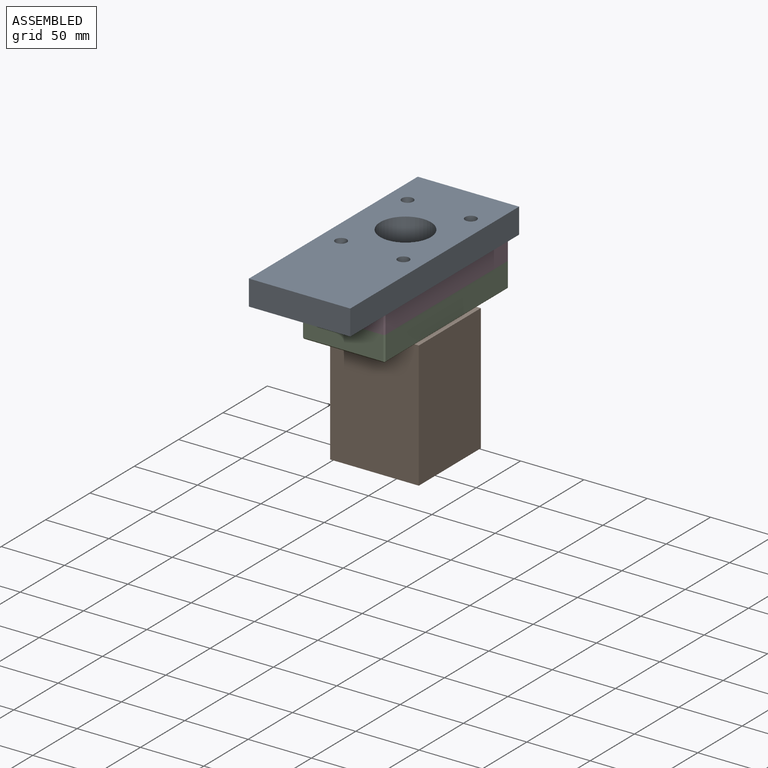
[diagram: assembled view]
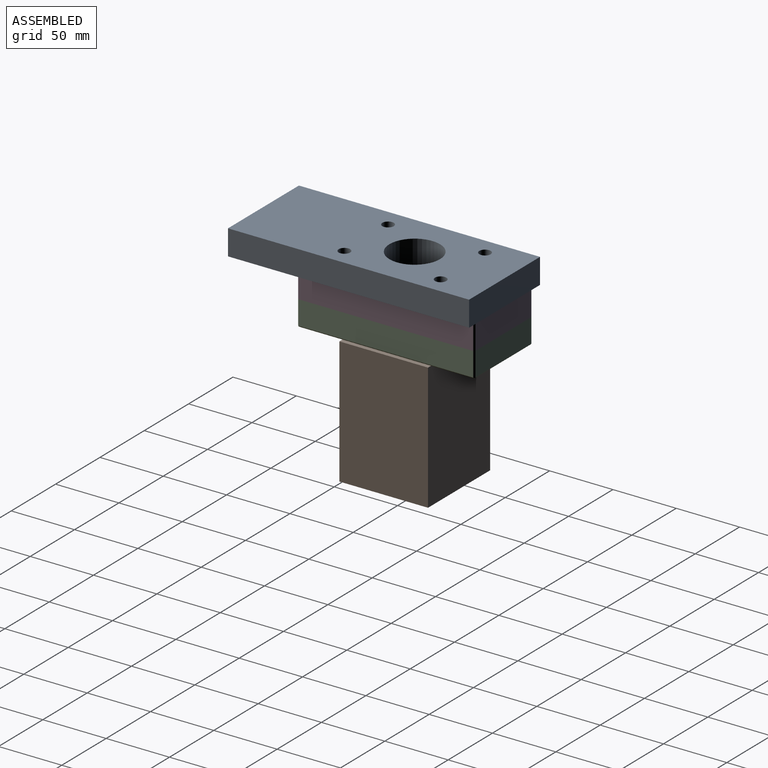
[diagram: assembled view, second angle]
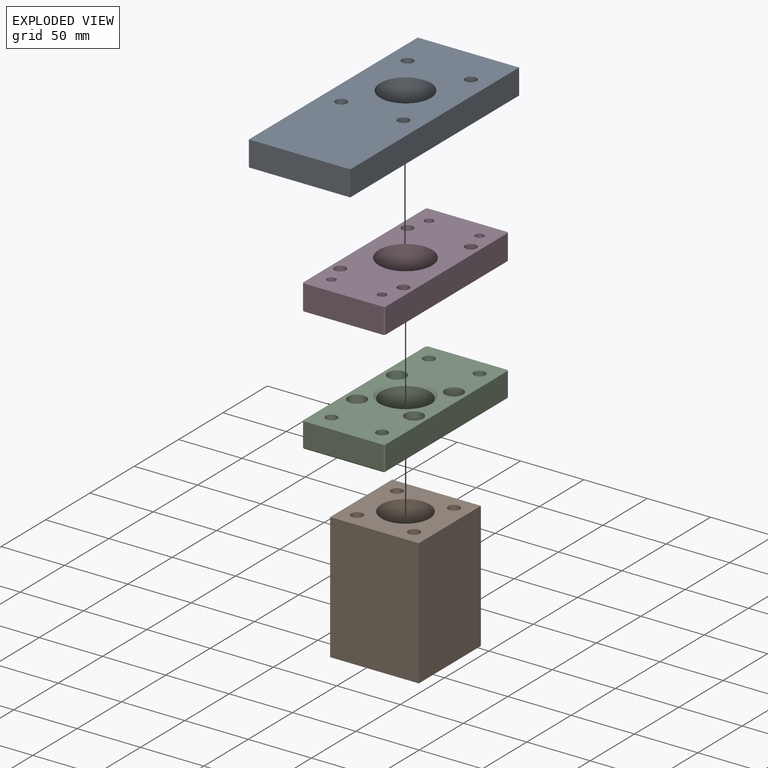
[diagram: exploded view]
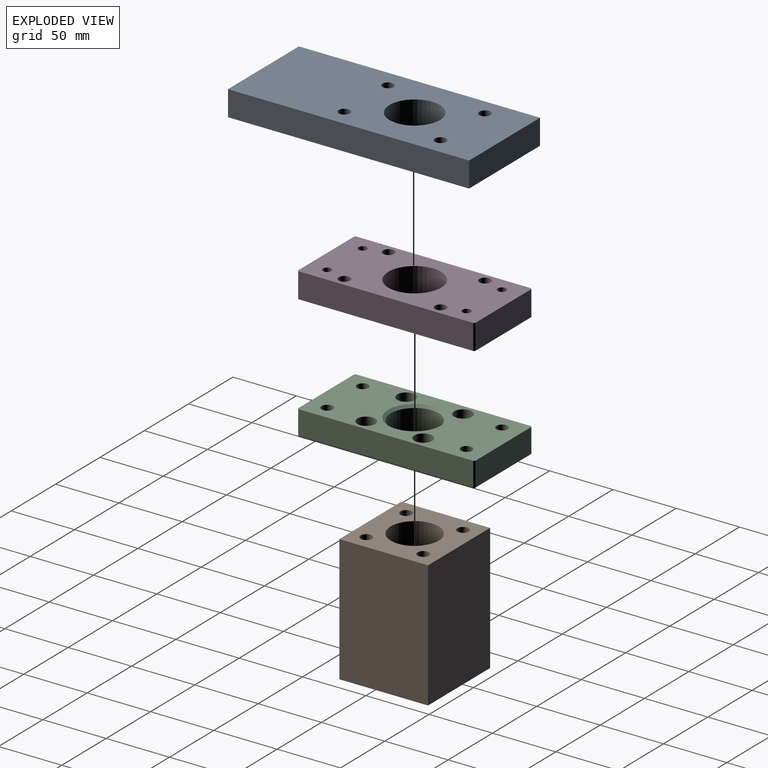
[diagram: exploded view, second angle]
ASSEMBLY  parts=4 mates=6
PART A: 11 faces, bbox 190.4x80x20 mm
  f0: plane 190.39x20mm, normal (0,-1,0), area 3807.7mm2, adj f1,f3,f4,f5
  f1: plane 80x20mm, normal (1,0,0), area 1600mm2, adj f0,f2,f4,f5
  f2: plane 190.39x20mm, normal (0,1,0), area 3807.7mm2, adj f1,f3,f4,f5
  f3: plane 80x20mm, normal (-1,0,0), area 1600mm2, adj f0,f2,f4,f5
  f4: plane 190.39x80mm, normal (0,0,1), area 13719.8mm2, adj f0,f1,f2,f3,f6,f7,f8,f9
  f5: plane 190.39x80mm, normal (0,0,-1), area 13719.8mm2, adj f0,f1,f2,f3,f6,f7,f8,f9
  f6: cylinder r=20mm len=40mm, axis (0,0,1), area 2513.3mm2, adj f4,f5
  f7: cylinder r=4.5mm len=20mm, axis (0,0,1), area 565.5mm2, adj f4,f5
  f8: cylinder r=4.5mm len=20mm, axis (0,0,1), area 565.5mm2, adj f4,f5
  f9: cylinder r=4.5mm len=20mm, axis (0,0,1), area 565.5mm2, adj f4,f5
  f10: cylinder r=4.5mm len=20mm, axis (0,0,1), area 565.5mm2, adj f4,f5
PART B: 11 faces, bbox 70x70x100 mm
  f0: plane 100x70mm, normal (0,-1,0), area 7000mm2, adj f1,f3,f4,f5
  f1: plane 100x70mm, normal (1,0,0), area 7000mm2, adj f0,f2,f4,f5
  f2: plane 100x70mm, normal (0,1,0), area 7000mm2, adj f1,f3,f4,f5
  f3: plane 100x70mm, normal (-1,0,0), area 7000mm2, adj f0,f2,f4,f5
  f4: plane 70x70mm, normal (0,0,1), area 3511.4mm2, adj f0,f1,f2,f3,f6,f7,f8,f9
  f5: plane 70x70mm, normal (0,0,-1), area 3511.4mm2, adj f0,f1,f2,f3,f6,f7,f8,f9
  f6: cylinder r=4.5mm len=100mm, axis (0,0,1), area 2827.4mm2, adj f4,f5
  f7: cylinder r=4.5mm len=100mm, axis (0,0,1), area 2827.4mm2, adj f4,f5
  f8: cylinder r=4.5mm len=100mm, axis (0,0,1), area 2827.4mm2, adj f4,f5
  f9: cylinder r=4.5mm len=100mm, axis (0,0,1), area 2827.4mm2, adj f4,f5
  f10: cylinder r=19mm len=100mm, axis (0,0,1), area 11938.1mm2, adj f4,f5
PART C: 32 faces, bbox 140x65x20 mm
  f0: plane 138x19mm, normal (0,-1,0), area 2622mm2, adj f4,f23,f29,f30
  f1: plane 63x19mm, normal (1,0,0), area 1197mm2, adj f4,f24,f28,f30
  f2: plane 138x19mm, normal (0,1,0), area 2622mm2, adj f4,f26,f27,f28
  f3: plane 63x19mm, normal (-1,0,0), area 1197mm2, adj f4,f25,f27,f29
  f4: plane 140x65mm, normal (0,0,1), area 6820.1mm2, adj f0,f1,f2,f3,f9,f12,f15,f18
  f5: plane 138x63mm, normal (0,0,-1), area 7050.9mm2, adj f6,f7,f10,f13,f16,f19,f20,f21
  f6: cylinder r=19mm len=38mm, axis (0,0,1), area 2148.8mm2, adj f5,f31
  f7: cylinder r=4.5mm len=11.5mm, axis (0,0,1), area 325.2mm2, adj f5,f8
  f8: plane 14.25x14.25mm, normal (0,0,1), area 95.9mm2, adj f7,f9
  f9: cylinder r=7.12mm len=14.25mm, axis (0,0,1), area 380.5mm2, adj f4,f8
  f10: cylinder r=4.5mm len=11.5mm, axis (0,0,1), area 325.2mm2, adj f5,f11
  f11: plane 14.25x14.25mm, normal (0,0,1), area 95.9mm2, adj f10,f12
  f12: cylinder r=7.12mm len=14.25mm, axis (0,0,1), area 380.5mm2, adj f4,f11
  f13: cylinder r=4.5mm len=11.5mm, axis (0,0,1), area 325.2mm2, adj f5,f14
  f14: plane 14.25x14.25mm, normal (0,0,1), area 95.9mm2, adj f13,f15
  f15: cylinder r=7.12mm len=14.25mm, axis (0,0,1), area 380.5mm2, adj f4,f14
  f16: cylinder r=4.5mm len=11.5mm, axis (0,0,1), area 325.2mm2, adj f5,f17
  f17: plane 14.25x14.25mm, normal (0,0,1), area 95.9mm2, adj f16,f18
  f18: cylinder r=7.12mm len=14.25mm, axis (0,0,1), area 380.5mm2, adj f4,f17
  f19: cylinder r=4.5mm len=20mm, axis (0,0,1), area 565.5mm2, adj f4,f5
  f20: cylinder r=4.5mm len=20mm, axis (0,0,1), area 565.5mm2, adj f4,f5
  f21: cylinder r=4.5mm len=20mm, axis (0,0,1), area 565.5mm2, adj f4,f5
  f22: cylinder r=4.5mm len=20mm, axis (0,0,1), area 565.5mm2, adj f4,f5
  f23: plane 139x1mm, normal (0,-0.71,-0.71), area 195.9mm2, adj f0,f5,f24,f25,f29,f30
  f24: plane 64x1mm, normal (0.71,0,-0.71), area 89.8mm2, adj f1,f5,f23,f26,f28,f30
  f25: plane 64x1mm, normal (-0.71,0,-0.71), area 89.8mm2, adj f3,f5,f23,f26,f27,f29
  f26: plane 139x1mm, normal (0,0.71,-0.71), area 195.9mm2, adj f2,f5,f24,f25,f27,f28
  f27: plane 19.5x1mm, normal (-0.71,0.71,0), area 27.2mm2, adj f2,f3,f4,f25,f26
  f28: plane 19.5x1mm, normal (0.71,0.71,0), area 27.2mm2, adj f1,f2,f4,f24,f26
  f29: plane 19.5x1mm, normal (-0.71,-0.71,0), area 27.2mm2, adj f0,f3,f4,f23,f25
  f30: plane 19.5x1mm, normal (0.71,-0.71,0), area 27.2mm2, adj f0,f1,f4,f23,f24
  f31: cone r=19mm half-angle=45deg, axis (0,0,1), area 355.4mm2, adj f4,f6
PART D: 27 faces, bbox 140x65x20 mm
  f0: plane 138x20mm, normal (0,-1,0), area 2760mm2, adj f4,f5,f23,f24
  f1: plane 63x20mm, normal (1,0,0), area 1260mm2, adj f4,f5,f24,f25
  f2: plane 138x20mm, normal (0,1,0), area 2760mm2, adj f4,f5,f25,f26
  f3: plane 63x20mm, normal (-1,0,0), area 1260mm2, adj f4,f5,f23,f26
  f4: plane 140x65mm, normal (0,0,1), area 6929.4mm2, adj f0,f1,f2,f3,f6,f9,f12,f15
  f5: plane 140x65mm, normal (0,0,-1), area 7312.8mm2, adj f0,f1,f2,f3,f6,f7,f10,f13
  f6: cylinder r=21mm len=42mm, axis (0,0,1), area 2638.9mm2, adj f4,f5
  f7: cylinder r=4.5mm len=11.5mm, axis (0,0,1), area 325.2mm2, adj f5,f8
  f8: plane 14.25x14.25mm, normal (0,0,1), area 95.9mm2, adj f7,f9
  f9: cylinder r=7.12mm len=14.25mm, axis (0,0,1), area 380.5mm2, adj f4,f8
  f10: cylinder r=4.5mm len=11.5mm, axis (0,0,1), area 325.2mm2, adj f5,f11
  f11: plane 14.25x14.25mm, normal (0,0,1), area 95.9mm2, adj f10,f12
  f12: cylinder r=7.12mm len=14.25mm, axis (0,0,1), area 380.5mm2, adj f4,f11
  f13: cylinder r=4.5mm len=11.5mm, axis (0,0,1), area 325.2mm2, adj f5,f14
  f14: plane 14.25x14.25mm, normal (0,0,1), area 95.9mm2, adj f13,f15
  f15: cylinder r=7.12mm len=14.25mm, axis (0,0,1), area 380.5mm2, adj f4,f14
  f16: cylinder r=4.5mm len=11.5mm, axis (0,0,1), area 325.2mm2, adj f5,f17
  f17: plane 14.25x14.25mm, normal (0,0,1), area 95.9mm2, adj f16,f18
  f18: cylinder r=7.12mm len=14.25mm, axis (0,0,1), area 380.5mm2, adj f4,f17
  f19: cylinder r=3.4mm len=20mm, axis (0,0,1), area 427.3mm2, adj f4,f5
  f20: cylinder r=3.4mm len=20mm, axis (0,0,1), area 427.3mm2, adj f4,f5
  f21: cylinder r=3.4mm len=20mm, axis (0,0,1), area 427.3mm2, adj f4,f5
  f22: cylinder r=3.4mm len=20mm, axis (0,0,1), area 427.3mm2, adj f4,f5
  f23: plane 20x1mm, normal (-0.71,-0.71,0), area 28.3mm2, adj f0,f3,f4,f5
  f24: plane 20x1mm, normal (0.71,-0.71,0), area 28.3mm2, adj f0,f1,f4,f5
  f25: plane 20x1mm, normal (0.71,0.71,0), area 28.3mm2, adj f1,f2,f4,f5
  f26: plane 20x1mm, normal (-0.71,0.71,0), area 28.3mm2, adj f2,f3,f4,f5
PLACE A rot(axis=(0,0,-1),90deg) t=(-38.79,-112.78,115.57)mm
PLACE B t=(-38.79,-88.52,-24.43)mm fixed
PLACE C rot(axis=(0,0,1),90deg) t=(-38.79,-88.52,75.57)mm
PLACE D rot(axis=(0.71,-0.71,0),180deg) t=(-38.79,-88.52,115.57)mm
MATE revolute D.f21 <-> C.f20  axis (0,0,-1) through (-18.79,-143.52,95.57)mm
MATE revolute A.f10 <-> D.f7  axis (0,0,-1) through (-63.79,-50.52,115.57)mm
MATE revolute A.f8 <-> D.f13  axis (0,0,-1) through (-13.79,-126.52,115.57)mm
MATE revolute C.f16 <-> B.f8  axis (0,0,-1) through (-16.29,-111.02,75.57)mm
MATE revolute D.f19 <-> C.f22  axis (0,0,-1) through (-58.79,-33.52,95.57)mm
MATE revolute C.f10 <-> B.f6  axis (0,0,-1) through (-61.29,-66.02,75.57)mm
